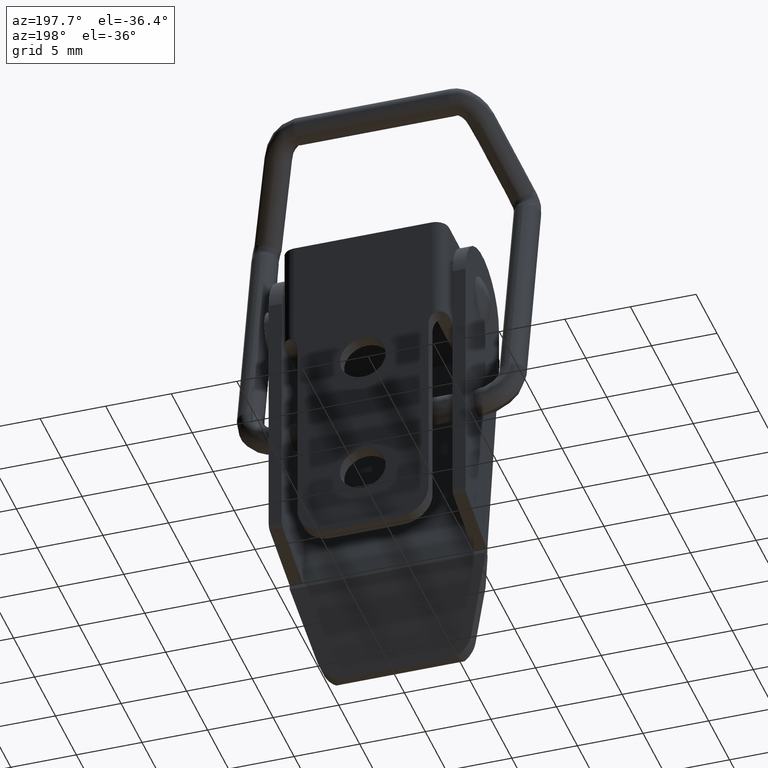
[diagram: clean part render]
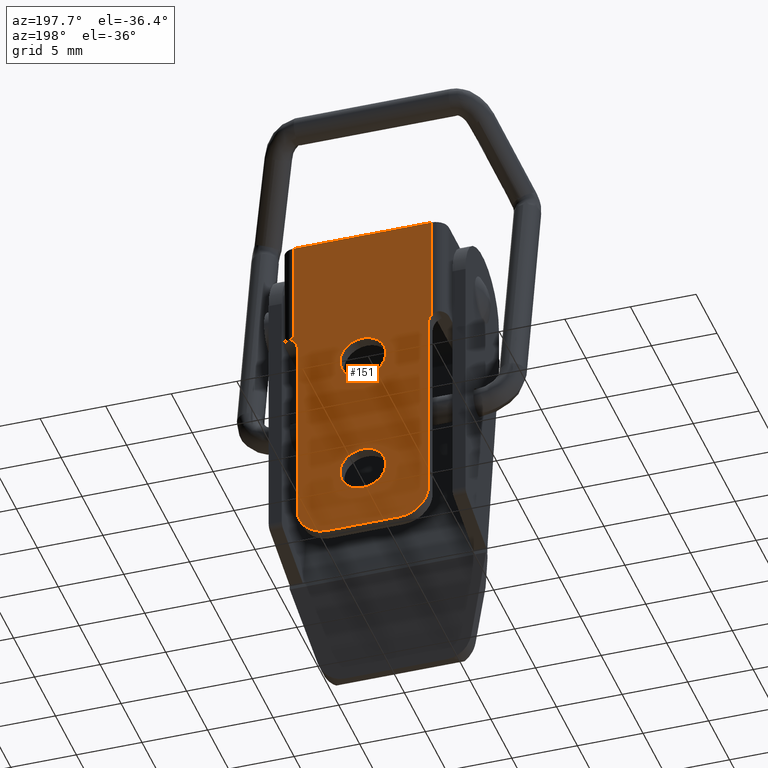
[diagram: same view with one face highlighted and labeled with its STEP entity id]
A machine part, auxiliary view. The second image highlights one B-rep face of the part: STEP entity #151.
In plain terms, the highlighted planar face has unit normal (0, 1, 0).
Its self-contained STEP definition (entity closure, byte-faithful):
#151=ADVANCED_FACE('',(#279,#280,#281),#278,.T.);
#278=PLANE('',#1357);
#279=FACE_OUTER_BOUND('',#1358,.T.);
#280=FACE_BOUND('',#1359,.T.);
#281=FACE_BOUND('',#1360,.T.);
#1354=CARTESIAN_POINT('',(-6.30000000000E+00,0.00000000000E+00,-2.86000000000E+01));
#1355=DIRECTION('',(-0.00000000000E+00,1.00000000000E+00,0.00000000000E+00));
#1356=DIRECTION('',(0.00000000000E+00,0.00000000000E+00,1.00000000000E+00));
#1357=AXIS2_PLACEMENT_3D('',#1354,#1355,#1356);
#1358=EDGE_LOOP('',(#3298,#3299,#3300,#3301,#3302,#3303,#3304,#3305,#3306,#3307));
#1359=EDGE_LOOP('',(#3308,#3309));
#1360=EDGE_LOOP('',(#3310,#3311));
#3298=ORIENTED_EDGE('',*,*,#3874,.F.);
#3299=ORIENTED_EDGE('',*,*,#3854,.T.);
#3300=ORIENTED_EDGE('',*,*,#3875,.T.);
#3301=ORIENTED_EDGE('',*,*,#3876,.F.);
#3302=ORIENTED_EDGE('',*,*,#3877,.F.);
#3303=ORIENTED_EDGE('',*,*,#3878,.F.);
#3304=ORIENTED_EDGE('',*,*,#3879,.F.);
#3305=ORIENTED_EDGE('',*,*,#3880,.F.);
#3306=ORIENTED_EDGE('',*,*,#3881,.T.);
#3307=ORIENTED_EDGE('',*,*,#3882,.T.);
#3308=ORIENTED_EDGE('',*,*,#3883,.T.);
#3309=ORIENTED_EDGE('',*,*,#3884,.T.);
#3310=ORIENTED_EDGE('',*,*,#3885,.T.);
#3311=ORIENTED_EDGE('',*,*,#3886,.T.);
#3854=EDGE_CURVE('',#4149,#4141,#4150,.T.);
#3874=EDGE_CURVE('',#4149,#4288,#4289,.T.);
#3875=EDGE_CURVE('',#4141,#4295,#4296,.T.);
#3876=EDGE_CURVE('',#4302,#4295,#4303,.T.);
#3877=EDGE_CURVE('',#4309,#4302,#4310,.T.);
#3878=EDGE_CURVE('',#4316,#4309,#4317,.T.);
#3879=EDGE_CURVE('',#4323,#4316,#4324,.T.);
#3880=EDGE_CURVE('',#4330,#4323,#4331,.T.);
#3881=EDGE_CURVE('',#4330,#4337,#4338,.T.);
#3882=EDGE_CURVE('',#4337,#4288,#4344,.T.);
#3883=EDGE_CURVE('',#4350,#4351,#4352,.T.);
#3884=EDGE_CURVE('',#4351,#4350,#4358,.T.);
#3885=EDGE_CURVE('',#4364,#4365,#4366,.T.);
#3886=EDGE_CURVE('',#4365,#4364,#4372,.T.);
#4141=VERTEX_POINT('',#6058);
#4149=VERTEX_POINT('',#6066);
#4150=LINE('',#6067,#6068);
#4288=VERTEX_POINT('',#6155);
#4289=LINE('',#6156,#6157);
#4295=VERTEX_POINT('',#6159);
#4296=CIRCLE('',#6163,1.00000000000E+00);
#4302=VERTEX_POINT('',#6164);
#4303=LINE('',#6165,#6166);
#4309=VERTEX_POINT('',#6168);
#4310=CIRCLE('',#6172,2.25000000000E+00);
#4316=VERTEX_POINT('',#6173);
#4317=LINE('',#6174,#6175);
#4323=VERTEX_POINT('',#6177);
#4324=CIRCLE('',#6181,2.25000000000E+00);
#4330=VERTEX_POINT('',#6182);
#4331=LINE('',#6183,#6184);
#4337=VERTEX_POINT('',#6186);
#4338=CIRCLE('',#6190,1.00000000000E+00);
#4344=LINE('',#6191,#6192);
#4350=VERTEX_POINT('',#6194);
#4351=VERTEX_POINT('',#6195);
#4352=CIRCLE('',#6199,1.75000000000E+00);
#4358=CIRCLE('',#6203,1.75000000000E+00);
#4364=VERTEX_POINT('',#6204);
#4365=VERTEX_POINT('',#6205);
#4366=CIRCLE('',#6209,1.75000000000E+00);
#4372=CIRCLE('',#6213,1.75000000000E+00);
#6058=CARTESIAN_POINT('',(5.25000000000E+00,0.00000000000E+00,-8.33856217223E+00));
#6066=CARTESIAN_POINT('',(5.25000000000E+00,0.00000000000E+00,0.00000000000E+00));
#6067=CARTESIAN_POINT('',(5.25000000000E+00,0.00000000000E+00,0.00000000000E+00));
#6068=VECTOR('',#6069,8.33856217223E+00);
#6069=DIRECTION('',(0.00000000000E+00,0.00000000000E+00,-1.00000000000E+00));
#6155=CARTESIAN_POINT('',(-5.25000000000E+00,0.00000000000E+00,0.00000000000E+00));
#6156=CARTESIAN_POINT('',(5.25000000000E+00,0.00000000000E+00,0.00000000000E+00));
#6157=VECTOR('',#6158,1.05000000000E+01);
#6158=DIRECTION('',(-1.00000000000E+00,0.00000000000E+00,0.00000000000E+00));
#6159=CARTESIAN_POINT('',(5.00000000000E+00,0.00000000000E+00,-9.00000000000E+00));
#6160=CARTESIAN_POINT('',(6.00000000000E+00,0.00000000000E+00,-9.00000000000E+00));
#6161=DIRECTION('',(0.00000000000E+00,-1.00000000000E+00,0.00000000000E+00));
#6162=DIRECTION('',(-0.00000000000E+00,-0.00000000000E+00,-1.00000000000E+00));
#6163=AXIS2_PLACEMENT_3D('',#6160,#6161,#6162);
#6164=CARTESIAN_POINT('',(5.00000000000E+00,0.00000000000E+00,-2.37500000000E+01));
#6165=CARTESIAN_POINT('',(5.00000000000E+00,0.00000000000E+00,-2.37500000000E+01));
#6166=VECTOR('',#6167,1.47500000000E+01);
#6167=DIRECTION('',(0.00000000000E+00,0.00000000000E+00,1.00000000000E+00));
#6168=CARTESIAN_POINT('',(2.75000000000E+00,0.00000000000E+00,-2.60000000000E+01));
#6169=CARTESIAN_POINT('',(2.75000000000E+00,0.00000000000E+00,-2.37500000000E+01));
#6170=DIRECTION('',(0.00000000000E+00,-1.00000000000E+00,0.00000000000E+00));
#6171=DIRECTION('',(-0.00000000000E+00,-0.00000000000E+00,-1.00000000000E+00));
#6172=AXIS2_PLACEMENT_3D('',#6169,#6170,#6171);
#6173=CARTESIAN_POINT('',(-2.75000000000E+00,0.00000000000E+00,-2.60000000000E+01));
#6174=CARTESIAN_POINT('',(-2.75000000000E+00,0.00000000000E+00,-2.60000000000E+01));
#6175=VECTOR('',#6176,5.50000000000E+00);
#6176=DIRECTION('',(1.00000000000E+00,0.00000000000E+00,0.00000000000E+00));
#6177=CARTESIAN_POINT('',(-5.00000000000E+00,0.00000000000E+00,-2.37500000000E+01));
#6178=CARTESIAN_POINT('',(-2.75000000000E+00,0.00000000000E+00,-2.37500000000E+01));
#6179=DIRECTION('',(0.00000000000E+00,-1.00000000000E+00,0.00000000000E+00));
#6180=DIRECTION('',(-0.00000000000E+00,-0.00000000000E+00,-1.00000000000E+00));
#6181=AXIS2_PLACEMENT_3D('',#6178,#6179,#6180);
#6182=CARTESIAN_POINT('',(-5.00000000000E+00,0.00000000000E+00,-9.00000000000E+00));
#6183=CARTESIAN_POINT('',(-5.00000000000E+00,0.00000000000E+00,-9.00000000000E+00));
#6184=VECTOR('',#6185,1.47500000000E+01);
#6185=DIRECTION('',(0.00000000000E+00,0.00000000000E+00,-1.00000000000E+00));
#6186=CARTESIAN_POINT('',(-5.25000000000E+00,0.00000000000E+00,-8.33856217223E+00));
#6187=CARTESIAN_POINT('',(-6.00000000000E+00,0.00000000000E+00,-9.00000000000E+00));
#6188=DIRECTION('',(0.00000000000E+00,-1.00000000000E+00,0.00000000000E+00));
#6189=DIRECTION('',(-0.00000000000E+00,-0.00000000000E+00,-1.00000000000E+00));
#6190=AXIS2_PLACEMENT_3D('',#6187,#6188,#6189);
#6191=CARTESIAN_POINT('',(-5.25000000000E+00,0.00000000000E+00,-8.33856217223E+00));
#6192=VECTOR('',#6193,8.33856217223E+00);
#6193=DIRECTION('',(0.00000000000E+00,0.00000000000E+00,1.00000000000E+00));
#6194=CARTESIAN_POINT('',(0.00000000000E+00,0.00000000000E+00,-1.92500000000E+01));
#6195=CARTESIAN_POINT('',(2.22044604925E-16,0.00000000000E+00,-2.27500000000E+01));
#6196=CARTESIAN_POINT('',(0.00000000000E+00,0.00000000000E+00,-2.10000000000E+01));
#6197=DIRECTION('',(0.00000000000E+00,-1.00000000000E+00,0.00000000000E+00));
#6198=DIRECTION('',(-1.22460635382E-16,0.00000000000E+00,1.00000000000E+00));
#6199=AXIS2_PLACEMENT_3D('',#6196,#6197,#6198);
#6200=CARTESIAN_POINT('',(0.00000000000E+00,0.00000000000E+00,-2.10000000000E+01));
#6201=DIRECTION('',(0.00000000000E+00,-1.00000000000E+00,0.00000000000E+00));
#6202=DIRECTION('',(-1.22460635382E-16,0.00000000000E+00,1.00000000000E+00));
#6203=AXIS2_PLACEMENT_3D('',#6200,#6201,#6202);
#6204=CARTESIAN_POINT('',(0.00000000000E+00,0.00000000000E+00,-9.25000000000E+00));
#6205=CARTESIAN_POINT('',(2.22044604925E-16,0.00000000000E+00,-1.27500000000E+01));
#6206=CARTESIAN_POINT('',(0.00000000000E+00,0.00000000000E+00,-1.10000000000E+01));
#6207=DIRECTION('',(0.00000000000E+00,-1.00000000000E+00,0.00000000000E+00));
#6208=DIRECTION('',(-1.22460635382E-16,0.00000000000E+00,1.00000000000E+00));
#6209=AXIS2_PLACEMENT_3D('',#6206,#6207,#6208);
#6210=CARTESIAN_POINT('',(0.00000000000E+00,0.00000000000E+00,-1.10000000000E+01));
#6211=DIRECTION('',(0.00000000000E+00,-1.00000000000E+00,0.00000000000E+00));
#6212=DIRECTION('',(-1.22460635382E-16,0.00000000000E+00,1.00000000000E+00));
#6213=AXIS2_PLACEMENT_3D('',#6210,#6211,#6212);